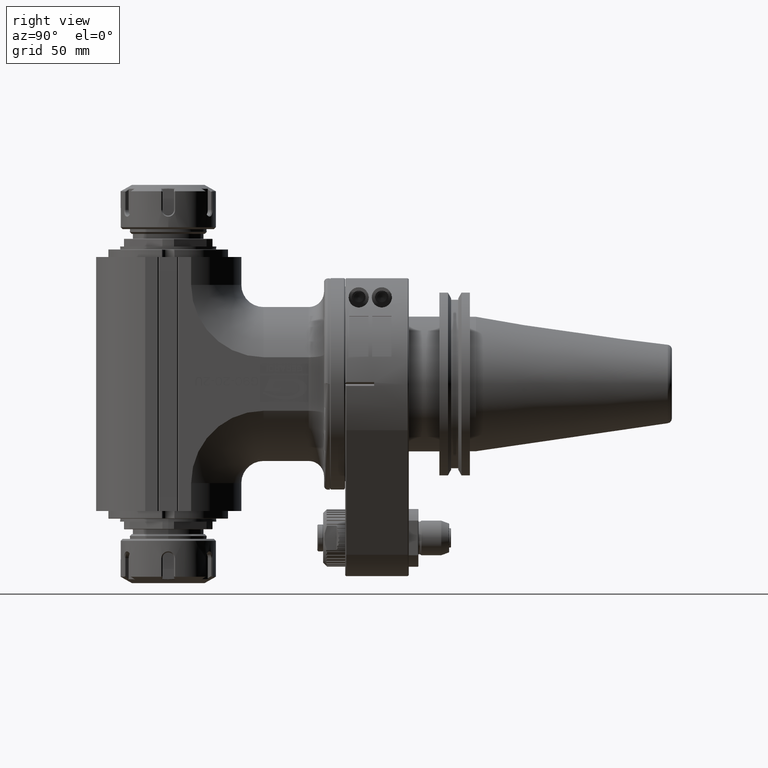
[diagram: clean part render]
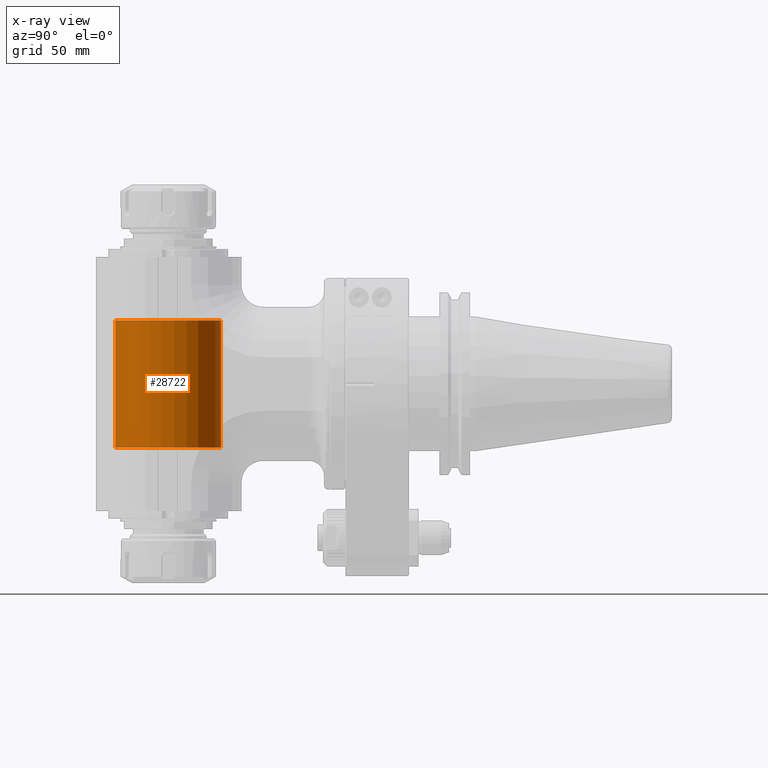
[diagram: x-ray — body ghosted, one internal face saturated and labeled with its STEP entity id]
A machine part, right view, then the same camera in x-ray: the body is ghosted and one INTERNAL B-rep face — a face not visible from any outside direction — is saturated and labeled: STEP entity #28722.
In plain terms, the highlighted cylindrical surface (bore or boss wall) has radius 27.5 mm, axis along (-0, 0, -1).
Its self-contained STEP definition (entity closure, byte-faithful):
#2808=CIRCLE('',#30946,27.5);
#2809=CIRCLE('',#30948,27.5);
#3448=CYLINDRICAL_SURFACE('',#30947,27.5);
#4144=FACE_OUTER_BOUND('',#5770,.T.);
#5770=EDGE_LOOP('',(#22065,#22066,#22067,#22068));
#7893=LINE('',#45120,#10435);
#10435=VECTOR('',#35665,27.5);
#13131=VERTEX_POINT('',#45115);
#13132=VERTEX_POINT('',#45118);
#16386=EDGE_CURVE('',#13131,#13131,#2808,.T.);
#16387=EDGE_CURVE('',#13132,#13132,#2809,.T.);
#16388=EDGE_CURVE('',#13132,#13131,#7893,.T.);
#22065=ORIENTED_EDGE('',*,*,#16387,.F.);
#22066=ORIENTED_EDGE('',*,*,#16388,.T.);
#22067=ORIENTED_EDGE('',*,*,#16386,.F.);
#22068=ORIENTED_EDGE('',*,*,#16388,.F.);
#28722=ADVANCED_FACE('',(#4144),#3448,.F.);
#30946=AXIS2_PLACEMENT_3D('',#45116,#35659,#35660);
#30947=AXIS2_PLACEMENT_3D('',#45117,#35661,#35662);
#30948=AXIS2_PLACEMENT_3D('',#45119,#35663,#35664);
#35659=DIRECTION('center_axis',(0.,0.,1.));
#35660=DIRECTION('ref_axis',(0.,-1.,0.));
#35661=DIRECTION('center_axis',(0.,0.,-1.));
#35662=DIRECTION('ref_axis',(0.,1.,0.));
#35663=DIRECTION('center_axis',(0.,0.,-1.));
#35664=DIRECTION('ref_axis',(0.,-1.,0.));
#35665=DIRECTION('',(0.,0.,-1.));
#45115=CARTESIAN_POINT('',(0.,-27.5,-33.));
#45116=CARTESIAN_POINT('Origin',(0.,0.,-33.));
#45117=CARTESIAN_POINT('Origin',(0.,0.,72.6));
#45118=CARTESIAN_POINT('',(0.,-27.5,33.));
#45119=CARTESIAN_POINT('Origin',(0.,0.,33.));
#45120=CARTESIAN_POINT('',(-3.36777869765522E-15,-27.5,72.6));